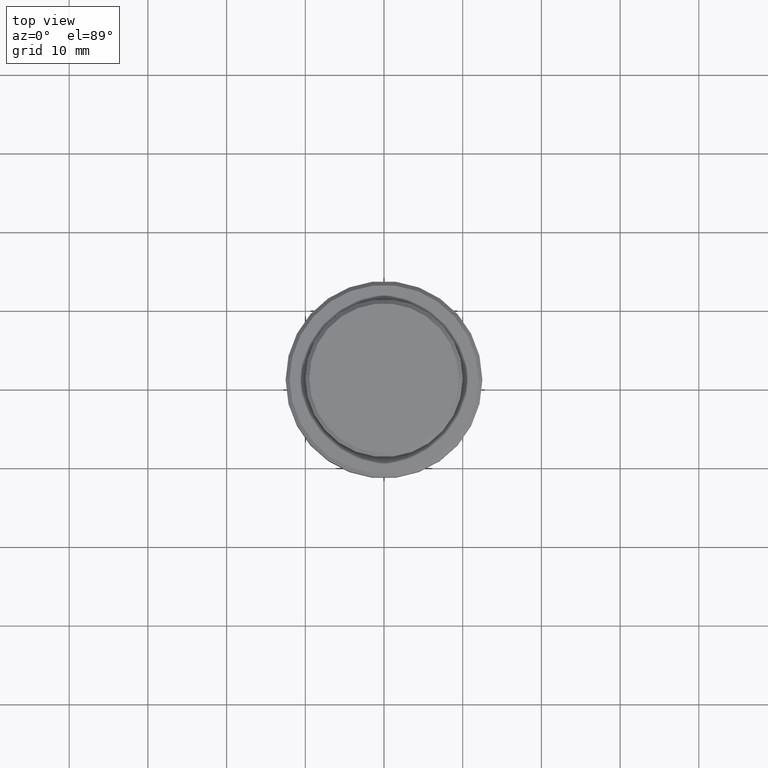
[diagram: clean part render]
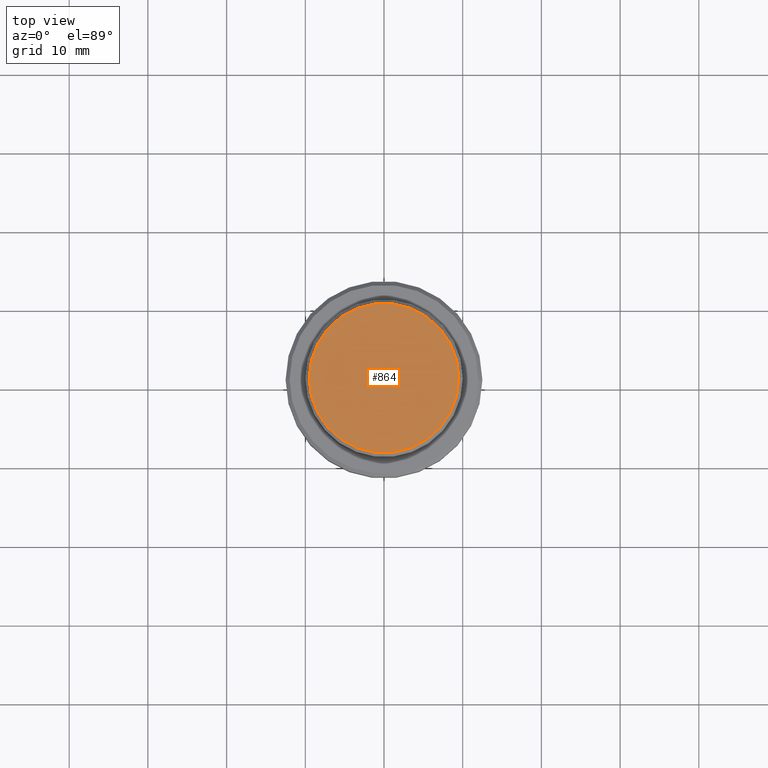
[diagram: same view with one face highlighted and labeled with its STEP entity id]
A machine part, top view. The second image highlights one B-rep face of the part: STEP entity #864.
In plain terms, the highlighted planar face has unit normal (0, -0, 1).
Its self-contained STEP definition (entity closure, byte-faithful):
#92 = DIRECTION ( 'NONE',  ( -0.000000000000000000, -0.000000000000000000, 1.000000000000000000 ) ) ;
#138 = FACE_OUTER_BOUND ( 'NONE', #535, .T. ) ;
#249 = CARTESIAN_POINT ( 'NONE',  ( -9.499999999999980460, 0.000000000000000000, 0.000000000000000000 ) ) ;
#268 = AXIS2_PLACEMENT_3D ( 'NONE', #1084, #92, #1199 ) ;
#290 = AXIS2_PLACEMENT_3D ( 'NONE', #1153, #1009, #1387 ) ;
#363 = AXIS2_PLACEMENT_3D ( 'NONE', #1339, #1005, #1016 ) ;
#376 = EDGE_CURVE ( 'NONE', #1180, #923, #590, .T. ) ;
#455 = CARTESIAN_POINT ( 'NONE',  ( 9.499999999999980460, 1.194030629168668089E-15, 0.000000000000000000 ) ) ;
#535 = EDGE_LOOP ( 'NONE', ( #1375, #1134 ) ) ;
#590 = CIRCLE ( 'NONE', #290, 9.499999999999980460 ) ;
#864 = ADVANCED_FACE ( 'NONE', ( #138 ), #1025, .T. ) ;
#923 = VERTEX_POINT ( 'NONE', #249 ) ;
#936 = CIRCLE ( 'NONE', #268, 9.499999999999980460 ) ;
#1005 = DIRECTION ( 'NONE',  ( 0.000000000000000000, -0.000000000000000000, 1.000000000000000000 ) ) ;
#1009 = DIRECTION ( 'NONE',  ( -0.000000000000000000, -0.000000000000000000, 1.000000000000000000 ) ) ;
#1016 = DIRECTION ( 'NONE',  ( 1.000000000000000000, 0.000000000000000000, 0.000000000000000000 ) ) ;
#1025 = PLANE ( 'NONE',  #363 ) ;
#1084 = CARTESIAN_POINT ( 'NONE',  ( 0.000000000000000000, 0.000000000000000000, 0.000000000000000000 ) ) ;
#1134 = ORIENTED_EDGE ( 'NONE', *, *, #376, .T. ) ;
#1153 = CARTESIAN_POINT ( 'NONE',  ( 0.000000000000000000, 0.000000000000000000, 0.000000000000000000 ) ) ;
#1171 = EDGE_CURVE ( 'NONE', #923, #1180, #936, .T. ) ;
#1180 = VERTEX_POINT ( 'NONE', #455 ) ;
#1199 = DIRECTION ( 'NONE',  ( 1.000000000000000000, 0.000000000000000000, 0.000000000000000000 ) ) ;
#1339 = CARTESIAN_POINT ( 'NONE',  ( 0.000000000000000000, 0.000000000000000000, 0.000000000000000000 ) ) ;
#1375 = ORIENTED_EDGE ( 'NONE', *, *, #1171, .T. ) ;
#1387 = DIRECTION ( 'NONE',  ( 1.000000000000000000, 0.000000000000000000, 0.000000000000000000 ) ) ;